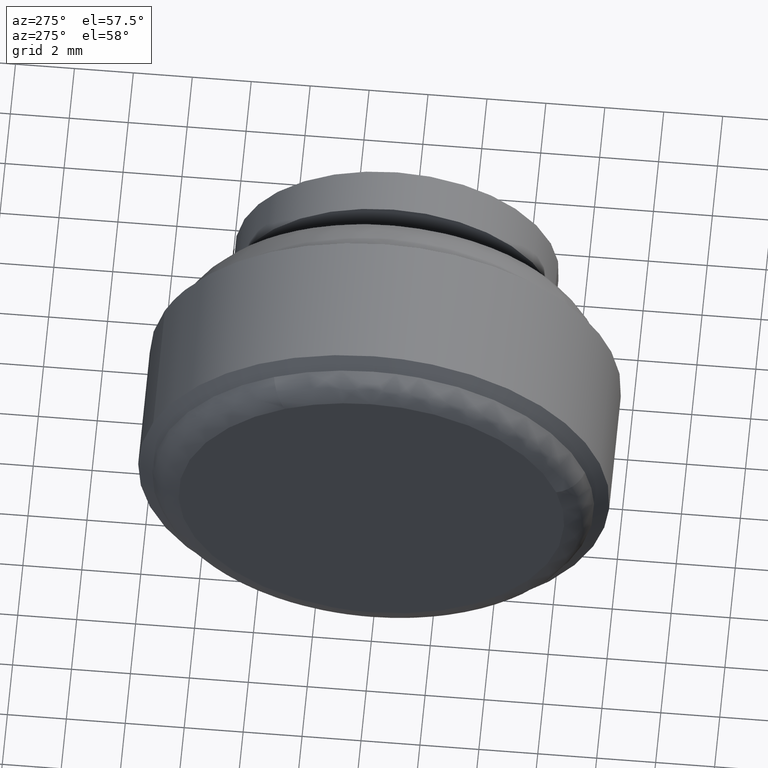
[diagram: clean part render]
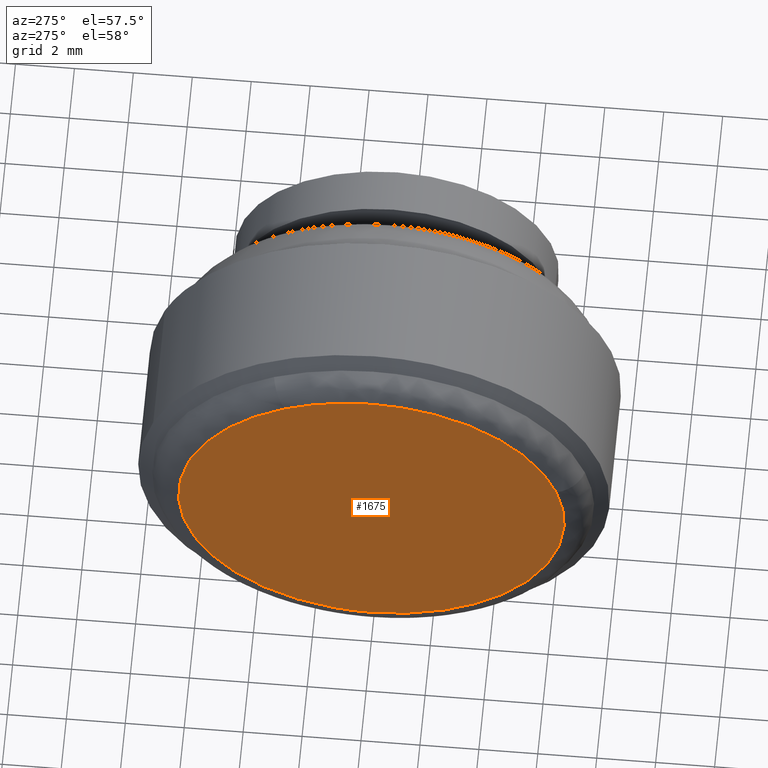
[diagram: same view with one face highlighted and labeled with its STEP entity id]
A machine part, auxiliary view. The second image highlights one B-rep face of the part: STEP entity #1675.
In plain terms, the highlighted face is a freeform B-spline surface patch.
Its self-contained STEP definition (entity closure, byte-faithful):
#1511=CARTESIAN_POINT('',(-10.0,-6.274483631327717,1.865736092285991));
#1512=VERTEX_POINT('',#1511);
#1526=CARTESIAN_POINT('',(-10.0,0.0,-6.545999999999999));
#1527=VERTEX_POINT('',#1526);
#1528=CARTESIAN_POINT('',(-10.0,0.0,-6.545999999999999));
#1529=CARTESIAN_POINT('',(-10.000000000000002,-6.545999999999999,-6.545999999999999));
#1530=CARTESIAN_POINT('',(-10.0,-6.545999999999999,0.0));
#1531=CARTESIAN_POINT('',(-10.0,-6.545999999999999,0.952624628765100));
#1532=CARTESIAN_POINT('',(-10.0,-6.274483631327717,1.865736092285991));
#1540=(BOUNDED_CURVE()B_SPLINE_CURVE(2,(#1528,#1529,#1530,#1531,#1532),.UNSPECIFIED.,.F.,.U.)B_SPLINE_CURVE_WITH_KNOTS((3,2,3),(0.500000000000000,0.750000000000000,0.798526662066025),.UNSPECIFIED.)CURVE()GEOMETRIC_REPRESENTATION_ITEM()RATIONAL_B_SPLINE_CURVE((1.0,0.707106781186548,1.0,0.943147478996837,0.908365862588250))REPRESENTATION_ITEM(''));
#1541=EDGE_CURVE('',#1527,#1512,#1540,.T.);
#1543=CARTESIAN_POINT('',(-10.0,2.932231827511500,5.852532145659377));
#1544=VERTEX_POINT('',#1543);
#1545=CARTESIAN_POINT('',(-10.0,2.932231827511501,5.852532145659377));
#1546=CARTESIAN_POINT('',(-10.000000000000002,6.546000000000000,4.041964379075684));
#1547=CARTESIAN_POINT('',(-10.0,6.545999999999999,0.0));
#1548=CARTESIAN_POINT('',(-10.000000000000002,6.545999999999999,-6.545999999999999));
#1549=CARTESIAN_POINT('',(-10.0,0.0,-6.545999999999999));
#1557=(BOUNDED_CURVE()B_SPLINE_CURVE(2,(#1545,#1546,#1547,#1548,#1549),.UNSPECIFIED.,.F.,.U.)B_SPLINE_CURVE_WITH_KNOTS((3,2,3),(0.076154610386085,0.250000000000000,0.500000000000000),.UNSPECIFIED.)CURVE()GEOMETRIC_REPRESENTATION_ITEM()RATIONAL_B_SPLINE_CURVE((0.875915174756552,0.796327457040407,1.0,0.707106781186548,1.0))REPRESENTATION_ITEM(''));
#1558=EDGE_CURVE('',#1544,#1527,#1557,.T.);
#1601=CARTESIAN_POINT('',(-10.0,0.0,6.545999999999999));
#1602=VERTEX_POINT('',#1601);
#1603=CARTESIAN_POINT('',(-10.0,0.0,6.545999999999999));
#1604=CARTESIAN_POINT('',(-9.999999999999998,1.548117899505205,6.545999999999999));
#1605=CARTESIAN_POINT('',(-10.0,2.932231827511501,5.852532145659377));
#1613=(BOUNDED_CURVE()B_SPLINE_CURVE(2,(#1603,#1604,#1605),.UNSPECIFIED.,.F.,.U.)B_SPLINE_CURVE_WITH_KNOTS((3,3),(0.0,0.076154610386085),.UNSPECIFIED.)CURVE()GEOMETRIC_REPRESENTATION_ITEM()RATIONAL_B_SPLINE_CURVE((1.0,0.910779324146140,0.875915174756552))REPRESENTATION_ITEM(''));
#1614=EDGE_CURVE('',#1602,#1544,#1613,.T.);
#1616=CARTESIAN_POINT('',(-10.0,-6.274483631327717,1.865736092285990));
#1617=CARTESIAN_POINT('',(-10.0,-4.882793444500416,6.545999999999999));
#1618=CARTESIAN_POINT('',(-10.0,0.0,6.545999999999999));
#1626=(BOUNDED_CURVE()B_SPLINE_CURVE(2,(#1616,#1617,#1618),.UNSPECIFIED.,.F.,.U.)B_SPLINE_CURVE_WITH_KNOTS((3,3),(0.798526662066026,1.0),.UNSPECIFIED.)CURVE()GEOMETRIC_REPRESENTATION_ITEM()RATIONAL_B_SPLINE_CURVE((0.908365862588250,0.763959302189711,1.0))REPRESENTATION_ITEM(''));
#1627=EDGE_CURVE('',#1512,#1602,#1626,.T.);
#1664=CARTESIAN_POINT('',(-10.0,-7.198232616777124,7.199945374625163));
#1665=CARTESIAN_POINT('',(-10.0,-7.198232616777124,-7.199945725779967));
#1666=CARTESIAN_POINT('',(-10.0,7.195548219275652,7.199945374625163));
#1667=CARTESIAN_POINT('',(-10.0,7.195548219275652,-7.199945725779967));
#1668=B_SPLINE_SURFACE_WITH_KNOTS('',1,1,((#1664,#1666),(#1665,#1667)),.UNSPECIFIED.,.F.,.F.,.U.,(2,2),(2,2),(0.0,14.399891100405130),(0.0,14.393780836052780),.UNSPECIFIED.);
#1669=ORIENTED_EDGE('',*,*,#1614,.T.);
#1670=ORIENTED_EDGE('',*,*,#1558,.T.);
#1671=ORIENTED_EDGE('',*,*,#1541,.T.);
#1672=ORIENTED_EDGE('',*,*,#1627,.T.);
#1673=EDGE_LOOP('',(#1669,#1670,#1671,#1672));
#1674=FACE_OUTER_BOUND('',#1673,.T.);
#1675=ADVANCED_FACE('',(#1674),#1668,.F.);